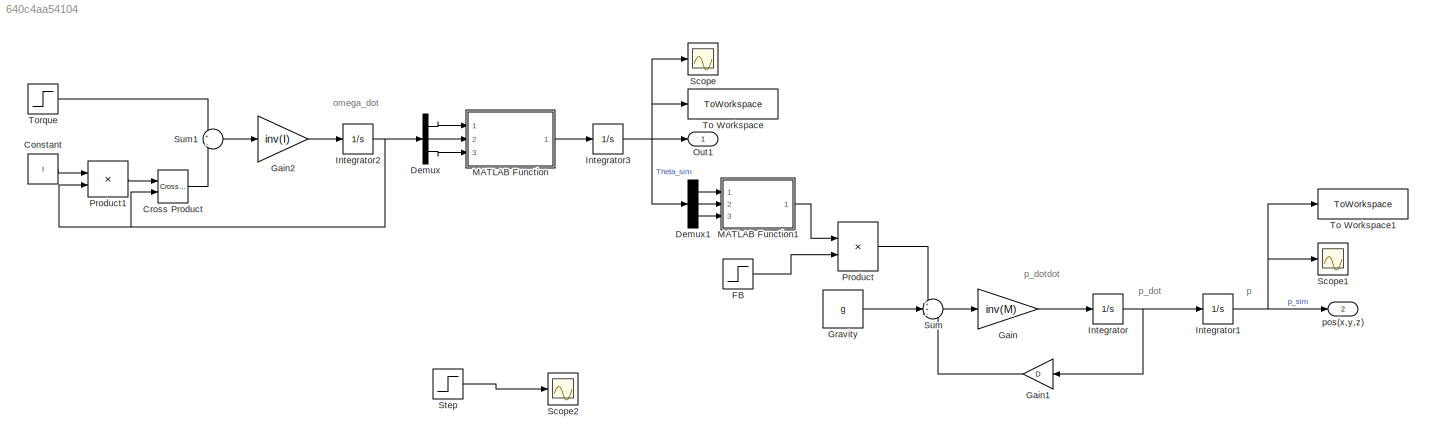
MODEL slx_640c4aa54104
KIND model
CONFIG AbsTol = auto
CONFIG EnableMultiTasking = off
CONFIG FixedStep = auto
CONFIG MaxStep = auto
CONFIG MinStep = auto
CONFIG RelTol = 1e-3
CONFIG SampleTimeConstraint = Unconstrained
CONFIG SolverName = VariableStepAuto
CONFIG StartTime = 0.0
CONFIG StopTime = 10
BLOCK [Constant] Constant
  Value = I
BLOCK [Reference] Cross Product  REF=vrlib/Utilities/Cross Product
  Ports = [2, 1]
  SourceBlock = vrlib/Utilities/Cross Product
  SourceProductBaseCode = SL
  SourceType = Cross Product
BLOCK [Demux] Demux
  Outputs = 3
  Ports = [1, 3]
BLOCK [Demux] Demux1
  Outputs = 3
  Ports = [1, 3]
BLOCK [Step] FB
  After = FB
  SampleTime = 0
BLOCK [Gain] Gain
  Gain = inv(M)
  Multiplication = Matrix(K*u)
BLOCK [Gain] Gain1
  Gain = D
  Multiplication = Matrix(K*u)
BLOCK [Gain] Gain2
  Gain = inv(I)
  Multiplication = Matrix(K*u)
BLOCK [Constant] Gravity
  Value = g
BLOCK [Integrator] Integrator
  Ports = [1, 1]
BLOCK [Integrator] Integrator1
  Ports = [1, 1]
BLOCK [Integrator] Integrator2
  Ports = [1, 1]
BLOCK [Integrator] Integrator3
  Ports = [1, 1]
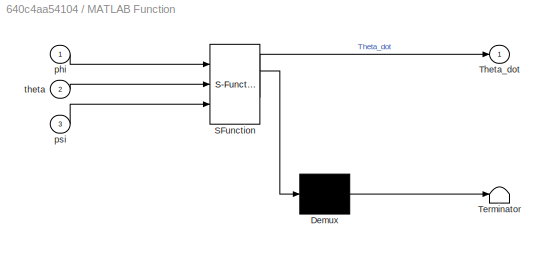
BLOCK [SubSystem] MATLAB Function
  ErrorFcn = Stateflow.Translate.translate
  PermitHierarchicalResolution = ExplicitOnly
  Ports = [3, 1]
  RequestExecContextInheritance = off
  SFBlockType = MATLAB Function
  TreatAsAtomicUnit = on
BLOCK [Demux] MATLAB Function/ Demux 
  Outputs = 1
  Ports = [1, 1]
BLOCK [S-Function] MATLAB Function/ SFunction 
  EnableBusSupport = on
  FunctionName = sf_sfun
  PortCounts = [3 2]
  Ports = [3, 2]
  SFcnIsStateOwnerBlock = off
  SFunctionDeploymentMode = off
  Tag = Stateflow S-Function 2
BLOCK [Terminator] MATLAB Function/ Terminator 
BLOCK [Outport] MATLAB Function/Theta_dot
BLOCK [Inport] MATLAB Function/phi
BLOCK [Inport] MATLAB Function/psi
  Port = 3
BLOCK [Inport] MATLAB Function/theta
  Port = 2
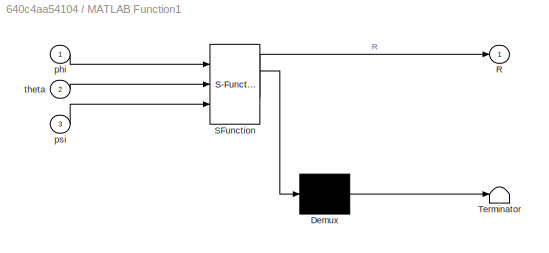
BLOCK [SubSystem] MATLAB Function1
  ErrorFcn = Stateflow.Translate.translate
  PermitHierarchicalResolution = ExplicitOnly
  Ports = [3, 1]
  RequestExecContextInheritance = off
  SFBlockType = MATLAB Function
  TreatAsAtomicUnit = on
BLOCK [Demux] MATLAB Function1/ Demux 
  Outputs = 1
  Ports = [1, 1]
BLOCK [S-Function] MATLAB Function1/ SFunction 
  EnableBusSupport = on
  FunctionName = sf_sfun
  PortCounts = [3 2]
  Ports = [3, 2]
  SFcnIsStateOwnerBlock = off
  SFunctionDeploymentMode = off
  Tag = Stateflow S-Function 1
BLOCK [Terminator] MATLAB Function1/ Terminator 
BLOCK [Outport] MATLAB Function1/R
BLOCK [Inport] MATLAB Function1/phi
BLOCK [Inport] MATLAB Function1/psi
  Port = 3
BLOCK [Inport] MATLAB Function1/theta
  Port = 2
BLOCK [Outport] Out1
  SignalName = Theta_sim
BLOCK [Product] Product
  Multiplication = Matrix(*)
  Ports = [2, 1]
BLOCK [Product] Product1
  Multiplication = Matrix(*)
  Ports = [2, 1]
BLOCK [Scope] Scope
  Floating = off
  NumInputPorts = 1
  Ports = [1]
  ScopeSpecificationString = Simulink.scopes.TimeScopeBlockCfg('CurrentConfiguration', extmgr.ConfigurationSet(extmgr.Configuration('Core','General UI',true),extmgr.Configuration('Core','Source UI',true),extmgr.Configuration('Sources','WiredSimulink',true),extmgr.Configuration('Visuals','Time Domain',true,'SerializedDisplays',{struct('MinYLimReal','-16696480.39904','MaxYLimReal','1855164.48878','YLabelReal','','MinYLimMag',' ...<+1411ch>
BLOCK [Scope] Scope1
  Floating = off
  NumInputPorts = 1
  Ports = [1]
  ScopeSpecificationString = Simulink.scopes.TimeScopeBlockCfg('CurrentConfiguration', extmgr.ConfigurationSet(extmgr.Configuration('Core','General UI',true),extmgr.Configuration('Core','Source UI',true),extmgr.Configuration('Sources','WiredSimulink',true,'DataLoggingVariableName','ScopeData1'),extmgr.Configuration('Visuals','Time Domain',true,'SerializedDisplays',{struct('MinYLimReal','-43.56224','MaxYLimReal','4.84025','YLa...<+1390ch>
BLOCK [Scope] Scope2
  Floating = off
  NumInputPorts = 1
  Ports = [1]
  ScopeSpecificationString = Simulink.scopes.TimeScopeBlockCfg('CurrentConfiguration', extmgr.ConfigurationSet(extmgr.Configuration('Core','General UI',true),extmgr.Configuration('Core','Source UI',true),extmgr.Configuration('Sources','WiredSimulink',true,'DataLoggingVariableName','ScopeData1'),extmgr.Configuration('Visuals','Time Domain',true,'SerializedDisplays',{struct('MinYLimReal','-0.125','MaxYLimReal','1.125','YLabelRe...<+1406ch>
BLOCK [Step] Step
  After = 0
  Before = 1
  SampleTime = 4
  Time = 2
BLOCK [Sum] Sum
  Inputs = ++-
  Ports = [3, 1]
BLOCK [Sum] Sum1
  Inputs = +|-
  Ports = [2, 1]
BLOCK [ToWorkspace] To Workspace
  Decimation = 2
  FixptAsFi = on
  MaxDataPoints = inf
  Ports = [1]
  SampleTime = -1
  SaveFormat = Timeseries
  VariableName = Theta_sim
BLOCK [ToWorkspace] To Workspace1
  Decimation = 2
  FixptAsFi = on
  MaxDataPoints = inf
  Ports = [1]
  SampleTime = -1
  SaveFormat = Timeseries
  VariableName = p_sim
BLOCK [Step] Torque
  After = tau_B
  SampleTime = 0
BLOCK [Outport] pos(x,y,z)
  Port = 2
  SignalName = p
ANNOTATION (root): omega_dot
ANNOTATION (root): p
ANNOTATION (root): p_dot
ANNOTATION (root): p_dotdot
LINE Constant:1 -> Product1:1
LINE Cross Product:1 -> Sum1:2
LINE Demux1:1 -> MATLAB Function1:1
LINE Demux1:2 -> MATLAB Function1:2
LINE Demux1:3 -> MATLAB Function1:3
LINE Demux:1 -> MATLAB Function:1
LINE Demux:2 -> MATLAB Function:2
LINE Demux:3 -> MATLAB Function:3
LINE FB:1 -> Product:2
LINE Gain1:1 -> Sum:3
LINE Gain2:1 -> Integrator2:1
LINE Gain:1 -> Integrator:1
LINE Gravity:1 -> Sum:2
NET Integrator1:1 -> Scope1:1, To Workspace1:1, pos(x,y,z):1
NET Integrator2:1 -> Cross Product:2, Demux:1, Product1:2
NET Integrator3:1 -> Demux1:1, Out1:1, Scope:1, To Workspace:1
NET Integrator:1 -> Gain1:1, Integrator1:1
LINE MATLAB Function1:1 -> Product:1
LINE MATLAB Function:1 -> Integrator3:1
LINE Product1:1 -> Cross Product:1
LINE Product:1 -> Sum:1
LINE Step:1 -> Scope2:1
LINE Sum1:1 -> Gain2:1
LINE Sum:1 -> Gain:1
LINE Torque:1 -> Sum1:1
note: NET lines group one-source signal fan-out (src -> all destinations, sorted); 1:1 wires keep LINE
CHART MATLAB Function states=1 transitions=1
  STATE_LABEL 'eML_blk_kernel()'
  STATE_LABEL 'SCRIPT:\nfunction Theta_dot = Theta_dot(phi,theta,psi)\n    rot =  [1, 0, -sin(theta);\n        0, cos(phi), cos(theta)*sin(phi);\n        0, -sin(phi), cos(theta)*cos(phi)\n       ];\n   omega = [phi;theta;psi];\nTheta_dot = inv(rot)*omega;\n'
CHART MATLAB Function1 states=1 transitions=1
  STATE_LABEL 'eML_blk_kernel()'
  STATE_LABEL 'SCRIPT:\nfunction R = Rot(phi,theta,psi)\n    Rot = [cos(psi)*cos(theta), -sin(psi)*cos(phi) + cos(psi)*sin(theta)*sin(phi), sin(psi)*sin(phi) + cos(psi)*sin(theta)*cos(phi);\n     sin(psi)*cos(theta), cos(psi)*cos(phi) + sin(psi)*sin(theta)*sin(phi), -cos(psi)*sin(phi) + sin(psi)*sin(theta)*cos(phi);\n     -sin(theta), cos(theta)*sin(phi), cos(theta)*cos(phi)\n    ];\nR = Rot;\n'
CHART  states=0 transitions=0
CHART  states=0 transitions=0
